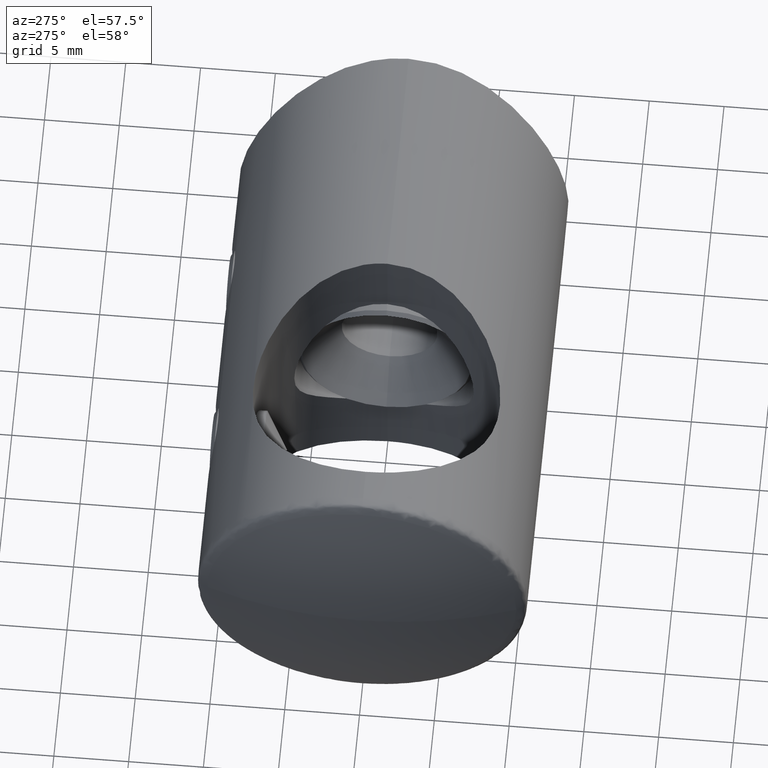
[diagram: clean part render]
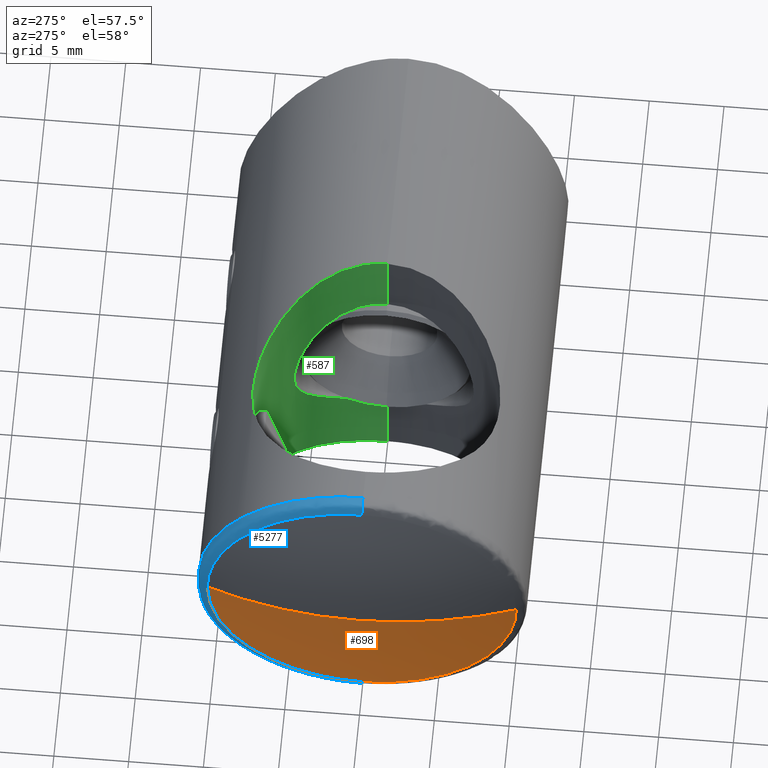
[diagram: same view with three faces highlighted in distinct colors, each labeled with its STEP entity id]
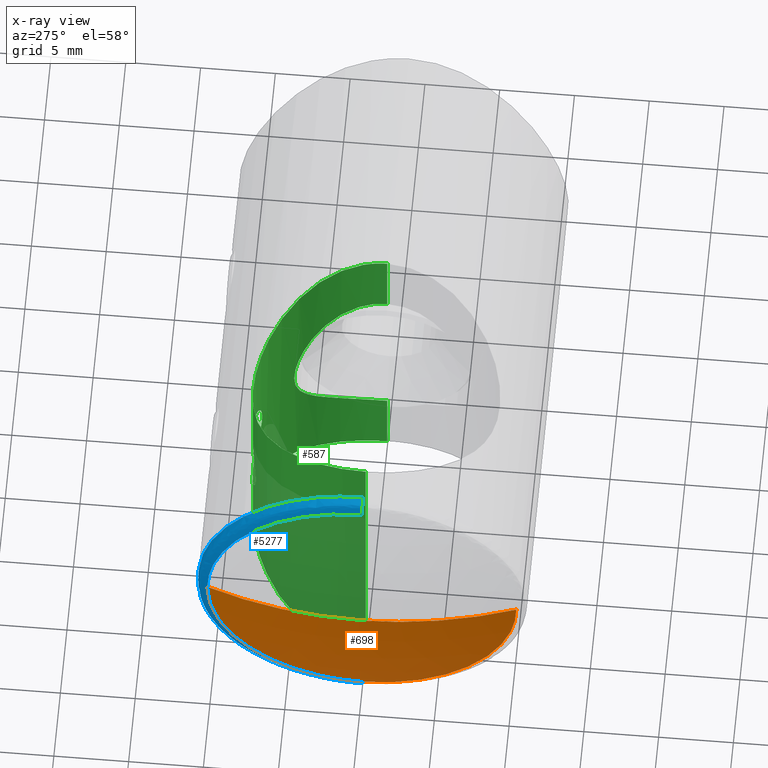
[diagram: x-ray of the same camera — body ghosted, the three highlighted faces saturated]
A machine part, auxiliary view with three faces highlighted in distinct colors.
The next image is the same camera in x-ray (body ghosted, the three faces saturated) — at least one of them is partly hidden behind the body in this view.
Their STEP definitions:

[orange] entity #698 — the highlighted spherical surface has radius 31.25 mm.
#24 = FACE_OUTER_BOUND ( 'NONE', #5221, .T. ) ;
#140 = CARTESIAN_POINT ( 'NONE',  ( 1.756922039244400000, -8.261021099154740800, -6.348623140236731500 ) ) ;
#254 = CARTESIAN_POINT ( 'NONE',  ( 31.24999999999998900, 0.0000000000000000000, 0.0000000000000000000 ) ) ;
#304 = CIRCLE ( 'NONE', #4768, 31.24999999999998900 ) ;
#552 = ORIENTED_EDGE ( 'NONE', *, *, #5036, .T. ) ;
#558 = EDGE_CURVE ( 'NONE', #4103, #1930, #1634, .T. ) ;
#598 = ORIENTED_EDGE ( 'NONE', *, *, #1356, .T. ) ;
#698 = ADVANCED_FACE ( 'NONE', ( #24 ), #2009, .T. ) ;
#707 = CARTESIAN_POINT ( 'NONE',  ( 1.756922039244400500, -10.33057851239669000, -5.583983872732769300E-015 ) ) ;
#814 = ORIENTED_EDGE ( 'NONE', *, *, #558, .T. ) ;
#824 = CARTESIAN_POINT ( 'NONE',  ( 1.756922039244400500, 2.704007069827279300, -10.06170120525118800 ) ) ;
#950 = DIRECTION ( 'NONE',  ( 0.0000000000000000000, 1.000000000000000000, 1.224646799147353200E-016 ) ) ;
#953 = CARTESIAN_POINT ( 'NONE',  ( 1.756922039244400500, -6.348623140236711900, -8.261021099154756800 ) ) ;
#1225 = CARTESIAN_POINT ( 'NONE',  ( 1.756922039244400500, 5.202675417054750900, -9.026718887957201800 ) ) ;
#1227 = B_SPLINE_CURVE_WITH_KNOTS ( 'NONE', 3,
 ( #3811, #3728, #5478, #1692, #5032, #4615, #1225, #824, #2537, #3787 ),
 .UNSPECIFIED., .F., .F.,
 ( 4, 2, 2, 2, 4 ),
 ( 0.2500000000000000000, 0.3125000000000000000, 0.3750000000000000000, 0.4375000000000000000, 0.5000000000000000000 ),
 .UNSPECIFIED. ) ;
#1356 = EDGE_CURVE ( 'NONE', #3671, #4103, #1227, .T. ) ;
#1380 = CARTESIAN_POINT ( 'NONE',  ( 1.756922039244400300, -9.026718887957201800, -5.202675417054749100 ) ) ;
#1503 = ORIENTED_EDGE ( 'NONE', *, *, #3414, .F. ) ;
#1629 = DIRECTION ( 'NONE',  ( 1.000000000000000000, 0.0000000000000000000, 0.0000000000000000000 ) ) ;
#1634 = B_SPLINE_CURVE_WITH_KNOTS ( 'NONE', 3,
 ( #4767, #5195, #5146, #2615, #953, #140, #1380, #2664, #3091, #4366 ),
 .UNSPECIFIED., .F., .F.,
 ( 4, 2, 2, 2, 4 ),
 ( 0.5000000000000000000, 0.5625000000000000000, 0.6250000000000000000, 0.6875000000000000000, 0.7500000000000000000 ),
 .UNSPECIFIED. ) ;
#1692 = CARTESIAN_POINT ( 'NONE',  ( 1.756922039244400300, 9.026718887957203600, -5.202675417054742000 ) ) ;
#1930 = VERTEX_POINT ( 'NONE', #707 ) ;
#1966 = CARTESIAN_POINT ( 'NONE',  ( 31.24999999999998900, 0.0000000000000000000, 0.0000000000000000000 ) ) ;
#2009 = SPHERICAL_SURFACE ( 'NONE', #4795, 31.24999999999998900 ) ;
#2537 = CARTESIAN_POINT ( 'NONE',  ( 1.756922039244400500, 1.352269565078253900, -10.33057851239669100 ) ) ;
#2615 = CARTESIAN_POINT ( 'NONE',  ( 1.756922039244400900, -5.202675417054744700, -9.026718887957205300 ) ) ;
#2664 = CARTESIAN_POINT ( 'NONE',  ( 1.756922039244400500, -10.06170120525118800, -2.704007069827281600 ) ) ;
#3004 = CARTESIAN_POINT ( 'NONE',  ( 1.756922039244400500, 10.33057851239669000, 9.398703391090517800E-016 ) ) ;
#3091 = CARTESIAN_POINT ( 'NONE',  ( 1.756922039244400000, -10.33057851239668600, -1.352269565078253500 ) ) ;
#3414 = EDGE_CURVE ( 'NONE', #3671, #3536, #304, .T. ) ;
#3536 = VERTEX_POINT ( 'NONE', #5123 ) ;
#3671 = VERTEX_POINT ( 'NONE', #3004 ) ;
#3728 = CARTESIAN_POINT ( 'NONE',  ( 1.756922039244400500, 10.33057851239669100, -1.352269565078248400 ) ) ;
#3768 = DIRECTION ( 'NONE',  ( -0.0000000000000000000, 0.0000000000000000000, 1.000000000000000000 ) ) ;
#3787 = CARTESIAN_POINT ( 'NONE',  ( 1.756922039244400500, 1.581413738568378900E-015, -10.33057851239669000 ) ) ;
#3811 = CARTESIAN_POINT ( 'NONE',  ( 1.756922039244400500, 10.33057851239669000, 9.398703391090517800E-016 ) ) ;
#4103 = VERTEX_POINT ( 'NONE', #5164 ) ;
#4141 = DIRECTION ( 'NONE',  ( 0.0000000000000000000, 1.000000000000000000, 0.0000000000000000000 ) ) ;
#4156 = CIRCLE ( 'NONE', #4663, 31.24999999999998900 ) ;
#4366 = CARTESIAN_POINT ( 'NONE',  ( 1.756922039244400500, -10.33057851239669000, -5.583983872732769300E-015 ) ) ;
#4383 = CARTESIAN_POINT ( 'NONE',  ( 31.24999999999998900, 0.0000000000000000000, 0.0000000000000000000 ) ) ;
#4615 = CARTESIAN_POINT ( 'NONE',  ( 1.756922039244400300, 6.348623140236723500, -8.261021099154746100 ) ) ;
#4663 = AXIS2_PLACEMENT_3D ( 'NONE', #4383, #4780, #950 ) ;
#4767 = CARTESIAN_POINT ( 'NONE',  ( 1.756922039244400500, 1.581413738568378900E-015, -10.33057851239669000 ) ) ;
#4768 = AXIS2_PLACEMENT_3D ( 'NONE', #1966, #3768, #1629 ) ;
#4780 = DIRECTION ( 'NONE',  ( 0.0000000000000000000, 1.224646799147353200E-016, -1.000000000000000000 ) ) ;
#4795 = AXIS2_PLACEMENT_3D ( 'NONE', #254, #5424, #4141 ) ;
#5032 = CARTESIAN_POINT ( 'NONE',  ( 1.756922039244400500, 8.261021099154753200, -6.348623140236719000 ) ) ;
#5036 = EDGE_CURVE ( 'NONE', #1930, #3536, #4156, .T. ) ;
#5123 = CARTESIAN_POINT ( 'NONE',  ( 0.0000000000000000000, 1.913510623667738700E-015, 0.0000000000000000000 ) ) ;
#5146 = CARTESIAN_POINT ( 'NONE',  ( 1.756922039244400500, -2.704007069827273600, -10.06170120525119000 ) ) ;
#5164 = CARTESIAN_POINT ( 'NONE',  ( 1.756922039244400500, 1.581413738568378900E-015, -10.33057851239669000 ) ) ;
#5195 = CARTESIAN_POINT ( 'NONE',  ( 1.756922039244400700, -1.352269565078246600, -10.33057851239669300 ) ) ;
#5221 = EDGE_LOOP ( 'NONE', ( #598, #814, #552, #1503 ) ) ;
#5424 = DIRECTION ( 'NONE',  ( -0.0000000000000000000, 0.0000000000000000000, -1.000000000000000000 ) ) ;
#5478 = CARTESIAN_POINT ( 'NONE',  ( 1.756922039244400700, 10.06170120525119000, -2.704007069827276200 ) ) ;

[blue] entity #5277 — the highlighted face is a freeform B-spline surface patch.
#8 = CARTESIAN_POINT ( 'NONE',  ( 1.756922039244196200, 2.704007071909384900, -10.06170120438812000 ) ) ;
#34 = CARTESIAN_POINT ( 'NONE',  ( 2.700700533988579500, 8.796335266379976800, 6.760013919724059400 ) ) ;
#53 = CARTESIAN_POINT ( 'NONE',  ( 2.700700533988579500, 6.735557395310440100E-016, -10.99999999999999600 ) ) ;
#149 = ORIENTED_EDGE ( 'NONE', *, *, #1356, .F. ) ;
#262 = CARTESIAN_POINT ( 'NONE',  ( 1.991401168373389000, 10.71369944243242300, -2.879226730169565300 ) ) ;
#280 = CARTESIAN_POINT ( 'NONE',  ( 1.991401168373390300, -11.00000000000000000, 1.439896630498682900 ) ) ;
#299 = CARTESIAN_POINT ( 'NONE',  ( 2.700700533988579500, -9.611650272816426400, -5.539808781859792800 ) ) ;
#320 = CARTESIAN_POINT ( 'NONE',  ( 1.991401168373390300, 11.00000000000000000, 1.439896630495493200 ) ) ;
#377 = CARTESIAN_POINT ( 'NONE',  ( 1.756922039244604300, 5.202675414972631500, -9.026718888820273200 ) ) ;
#396 = CARTESIAN_POINT ( 'NONE',  ( 1.756922039244400000, 8.261021097561359400, -6.348623141830112000 ) ) ;
#406 = EDGE_CURVE ( 'NONE', #1681, #2319, #893, .T. ) ;
#462 = CARTESIAN_POINT ( 'NONE',  ( 2.700700533988579500, 10.99999999999999800, 1.439896632895321800 ) ) ;
#481 = CARTESIAN_POINT ( 'NONE',  ( 2.700700533988579500, 6.760013919724061200, -8.796335266379975000 ) ) ;
#570 =( BOUNDED_CURVE ( )  B_SPLINE_CURVE ( 2, ( #4273, #2260, #4808 ),
 .UNSPECIFIED., .F., .F. ) 
 B_SPLINE_CURVE_WITH_KNOTS ( ( 3, 3 ),
 ( 0.0000000000000000000, 1.000000000000000000 ),
 .UNSPECIFIED. ) 
 CURVE ( )  GEOMETRIC_REPRESENTATION_ITEM ( )  RATIONAL_B_SPLINE_CURVE ( ( 1.000000000000000000, 4.078263282937810700, 1.000000000000000000 ) ) 
 REPRESENTATION_ITEM ( '' )  );
#580 = CARTESIAN_POINT ( 'NONE',  ( 2.700700533988579500, -6.760013921420907400, 8.796335264683131400 ) ) ;
#668 = CARTESIAN_POINT ( 'NONE',  ( 1.991401168373390300, 1.347111479062088200E-015, 11.00000000000000000 ) ) ;
#688 = CARTESIAN_POINT ( 'NONE',  ( 2.700700533988579500, 1.347111479062087800E-015, 10.99999999999999600 ) ) ;
#709 = CARTESIAN_POINT ( 'NONE',  ( 1.991401168373390300, -11.00000000000000000, -1.439896630498699100 ) ) ;
#726 = CARTESIAN_POINT ( 'NONE',  ( 2.700700533988579500, 2.879226730169502300, 10.71369944243298300 ) ) ;
#745 = CARTESIAN_POINT ( 'NONE',  ( 2.700700533988579500, -6.760013921418633700, -8.796335264685403400 ) ) ;
#764 = CARTESIAN_POINT ( 'NONE',  ( 1.756922039244520800, 9.026718888820257200, -5.202675414972051500 ) ) ;
#800 = CARTESIAN_POINT ( 'NONE',  ( 1.756922039244547300, -5.202675414972121700, 9.026718888820312300 ) ) ;
#824 = CARTESIAN_POINT ( 'NONE',  ( 1.756922039244400500, 2.704007069827279300, -10.06170120525118800 ) ) ;
#839 = CARTESIAN_POINT ( 'NONE',  ( 1.756922039244400000, 6.348623141830111100, -8.261021097561361200 ) ) ;
#850 = CARTESIAN_POINT ( 'NONE',  ( 2.700700533988579900, 10.71369944335146900, 2.879226727952081800 ) ) ;
#865 = CARTESIAN_POINT ( 'NONE',  ( 2.700700533988579000, 5.539808784079891500, -9.611650271896834900 ) ) ;
#893 = B_SPLINE_CURVE_WITH_KNOTS ( 'NONE', 3,
 ( #53, #3416, #2133, #865, #481, #3435, #3834, #1329, #3874, #462, #850, #1678, #34, #2564, #1699, #4265, #1273, #2114 ),
 .UNSPECIFIED., .F., .F.,
 ( 4, 2, 2, 2, 2, 2, 2, 2, 4 ),
 ( 0.5000000000000000000, 0.5625000000000000000, 0.6250000000000000000, 0.6874999999999998900, 0.7499999999999998900, 0.8124999999999998900, 0.8750000000000000000, 0.9375000000000000000, 1.000000000000000000 ),
 .UNSPECIFIED. ) ;
#1089 = CARTESIAN_POINT ( 'NONE',  ( 1.991401168373957000, -6.760013921420338100, 8.796335264682568300 ) ) ;
#1108 = CARTESIAN_POINT ( 'NONE',  ( 2.700700533988579500, 5.539808781863098600, -9.611650272815058600 ) ) ;
#1127 = CARTESIAN_POINT ( 'NONE',  ( 2.700700533988579500, -2.879226730172579800, -10.71369944243170600 ) ) ;
#1146 = CARTESIAN_POINT ( 'NONE',  ( 1.991401168373105000, -9.611650272813602000, 5.539808781865822600 ) ) ;
#1163 = CARTESIAN_POINT ( 'NONE',  ( 2.700700533988579500, -10.71369944243440700, 2.879226730166064100 ) ) ;
#1200 = CARTESIAN_POINT ( 'NONE',  ( 1.756922039244524600, -5.202675414969234200, -9.026718888821436700 ) ) ;
#1220 = CARTESIAN_POINT ( 'NONE',  ( 1.756922039244400300, 1.265130990854703100E-015, 10.33057851239669000 ) ) ;
#1225 = CARTESIAN_POINT ( 'NONE',  ( 1.756922039244400500, 5.202675417054750900, -9.026718887957201800 ) ) ;
#1227 = B_SPLINE_CURVE_WITH_KNOTS ( 'NONE', 3,
 ( #3811, #3728, #5478, #1692, #5032, #4615, #1225, #824, #2537, #3787 ),
 .UNSPECIFIED., .F., .F.,
 ( 4, 2, 2, 2, 4 ),
 ( 0.2500000000000000000, 0.3125000000000000000, 0.3750000000000000000, 0.4375000000000000000, 0.5000000000000000000 ),
 .UNSPECIFIED. ) ;
#1242 = CARTESIAN_POINT ( 'NONE',  ( 1.756922039244400300, 1.352269562824468800, 10.33057851239669000 ) ) ;
#1273 = CARTESIAN_POINT ( 'NONE',  ( 2.700700533988579900, 1.439896632895322200, 10.99999999999999600 ) ) ;
#1317 = ORIENTED_EDGE ( 'NONE', *, *, #5255, .F. ) ;
#1329 = CARTESIAN_POINT ( 'NONE',  ( 2.700700533988578600, 10.71369944335146600, -2.879226727952080500 ) ) ;
#1356 = EDGE_CURVE ( 'NONE', #3671, #4103, #1227, .T. ) ;
#1393 = CARTESIAN_POINT ( 'NONE',  ( 1.756922039244400500, 1.352269565078248800, 10.33057851239669300 ) ) ;
#1425 = CARTESIAN_POINT ( 'NONE',  ( 2.700700533988579500, -8.796335264683142100, 6.760013921420894100 ) ) ;
#1479 = CARTESIAN_POINT ( 'NONE',  ( 1.756922039244400500, 6.348623140236719000, 8.261021099154751500 ) ) ;
#1515 = CARTESIAN_POINT ( 'NONE',  ( 1.991401168373390300, 1.439896630495578700, -11.00000000000000000 ) ) ;
#1537 = CARTESIAN_POINT ( 'NONE',  ( 1.991401168373390300, -1.439896630495491700, 11.00000000000000000 ) ) ;
#1556 = CARTESIAN_POINT ( 'NONE',  ( 2.700700533988579500, 8.796335264682564800, 6.760013921421475800 ) ) ;
#1570 = FACE_OUTER_BOUND ( 'NONE', #3387, .T. ) ;
#1574 = CARTESIAN_POINT ( 'NONE',  ( 1.991401168372537900, -8.796335264684824300, -6.760013921418077700 ) ) ;
#1592 = CARTESIAN_POINT ( 'NONE',  ( 2.700700533988579500, 6.760013921420911000, -8.796335264683127900 ) ) ;
#1609 = CARTESIAN_POINT ( 'NONE',  ( 1.756922039244290400, -8.261021097563119800, -6.348623141827907500 ) ) ;
#1651 =( BOUNDED_SURFACE ( )  B_SPLINE_SURFACE ( 2, 3, ( 
 ( #5319, #3604, #4021, #4455, #580, #1425, #4398, #1163, #2454, #2435, #4916, #299, #4515, #745, #4057, #1127, #5338, #4114, #4969, #1108, #1592, #5359, #3236, #4096, #4554, #3275, #1962, #3257, #1556, #3638, #2846, #726, #3693, #688 ),
 ( #2828, #1537, #4077, #4937, #1089, #4954, #1146, #2399, #280, #709, #4534, #4493, #1574, #3674, #2003, #5393, #3709, #1515, #1983, #2864, #3656, #2417, #5376, #262, #4570, #320, #3292, #4131, #2023, #4988, #5413, #2884, #3214, #668 ),
 ( #1943, #2378, #2808, #800, #2920, #3744, #4629, #3763, #4150, #4609, #5451, #2085, #1609, #5009, #1200, #2066, #2105, #3348, #8, #377, #839, #396, #764, #3804, #5047, #3311, #4232, #4168, #2512, #2902, #1688, #4590, #1242, #1220 ) ),
 .UNSPECIFIED., .F., .T., .F. ) 
 B_SPLINE_SURFACE_WITH_KNOTS ( ( 3, 3 ),
 ( 4, 2, 2, 2, 2, 2, 2, 2, 2, 2, 2, 2, 2, 2, 2, 2, 4 ),
 ( 0.0000000000000000000, 1.000000000000000000 ),
 ( -3.141592653589793100, -2.748893571891069000, -2.356194490192344800, -1.963495408493620700, -1.570796326794896600, -1.178097245096172400, -0.7853981633974482800, -0.3926990816987241400, 0.0000000000000000000, 0.3926990816987241400, 0.7853981633974482800, 1.178097245096172400, 1.570796326794896600, 1.963495408493620700, 2.356194490192344800, 2.748893571891069000, 3.141592653589793100 ),
 .UNSPECIFIED. ) 
 GEOMETRIC_REPRESENTATION_ITEM ( )  RATIONAL_B_SPLINE_SURFACE ( (
 ( 1.000000000000000000, 1.000000000000000000, 1.000000000000000000, 1.000000000000000000, 1.000000000000000000, 1.000000000000000000, 1.000000000000000000, 1.000000000000000000, 1.000000000000000000, 1.000000000000000000, 1.000000000000000000, 1.000000000000000000, 1.000000000000000000, 1.000000000000000000, 1.000000000000000000, 1.000000000000000000, 1.000000000000000000, 1.000000000000000000, 1.000000000000000000, 1.000000000000000000, 1.000000000000000000, 1.000000000000000000, 1.000000000000000000, 1.000000000000000000, 1.000000000000000000, 1.000000000000000000, 1.000000000000000000, 1.000000000000000000, 1.000000000000000000, 1.000000000000000000, 1.000000000000000000, 1.000000000000000000, 1.000000000000000000, 1.000000000000000000),
 ( 4.078263282937810700, 4.078263282937810700, 4.078263282937807200, 4.078263282937807200, 4.078263282937810700, 4.078263282937810700, 4.078263282937807200, 4.078263282937807200, 4.078263282937810700, 4.078263282937810700, 4.078263282937810700, 4.078263282937810700, 4.078263282937810700, 4.078263282937810700, 4.078263282937809800, 4.078263282937809800, 4.078263282937810700, 4.078263282937810700, 4.078263282937808900, 4.078263282937808900, 4.078263282937810700, 4.078263282937810700, 4.078263282937809800, 4.078263282937809800, 4.078263282937810700, 4.078263282937810700, 4.078263282937810700, 4.078263282937810700, 4.078263282937809800, 4.078263282937809800, 4.078263282937808000, 4.078263282937808000, 4.078263282937810700, 4.078263282937810700),
 ( 1.000000000000000000, 1.000000000000000000, 1.000000000000000000, 1.000000000000000000, 1.000000000000000000, 1.000000000000000000, 1.000000000000000000, 1.000000000000000000, 1.000000000000000000, 1.000000000000000000, 1.000000000000000000, 1.000000000000000000, 1.000000000000000000, 1.000000000000000000, 1.000000000000000000, 1.000000000000000000, 1.000000000000000000, 1.000000000000000000, 1.000000000000000000, 1.000000000000000000, 1.000000000000000000, 1.000000000000000000, 1.000000000000000000, 1.000000000000000000, 1.000000000000000000, 1.000000000000000000, 1.000000000000000000, 1.000000000000000000, 1.000000000000000000, 1.000000000000000000, 1.000000000000000000, 1.000000000000000000, 1.000000000000000000, 1.000000000000000000) ) ) 
 REPRESENTATION_ITEM ( '' )  SURFACE ( )  );
#1678 = CARTESIAN_POINT ( 'NONE',  ( 2.700700533988579000, 9.611650271896833100, 5.539808784079891500 ) ) ;
#1681 = VERTEX_POINT ( 'NONE', #3848 ) ;
#1688 = CARTESIAN_POINT ( 'NONE',  ( 1.756922039244533100, 5.202675414972132400, 9.026718888820260700 ) ) ;
#1692 = CARTESIAN_POINT ( 'NONE',  ( 1.756922039244400300, 9.026718887957203600, -5.202675417054742000 ) ) ;
#1699 = CARTESIAN_POINT ( 'NONE',  ( 2.700700533988579900, 5.539808784079892400, 9.611650271896836600 ) ) ;
#1868 = CARTESIAN_POINT ( 'NONE',  ( 1.756922039244400500, 9.026718887957201800, 5.202675417054750000 ) ) ;
#1943 = CARTESIAN_POINT ( 'NONE',  ( 1.756922039244400300, 1.265130990854703100E-015, 10.33057851239669000 ) ) ;
#1962 = CARTESIAN_POINT ( 'NONE',  ( 2.700700533988579500, 10.71369944243304000, 2.879226730169361000 ) ) ;
#1983 = CARTESIAN_POINT ( 'NONE',  ( 1.991401168373389000, 2.879226730170137300, -10.71369944243355800 ) ) ;
#2002 = CARTESIAN_POINT ( 'NONE',  ( 2.700700533988579500, -6.735557395310441000E-016, 10.99999999999999600 ) ) ;
#2003 = CARTESIAN_POINT ( 'NONE',  ( 1.991401168373671600, -5.539808781859558300, -9.611650272817016100 ) ) ;
#2023 = CARTESIAN_POINT ( 'NONE',  ( 1.991401168373956500, 8.796335264681996300, 6.760013921420905600 ) ) ;
#2066 = CARTESIAN_POINT ( 'NONE',  ( 1.756922039244275700, -2.704007071912778200, -10.06170120438695800 ) ) ;
#2085 = CARTESIAN_POINT ( 'NONE',  ( 1.756922039244524600, -9.026718888821434900, -5.202675414969237800 ) ) ;
#2105 = CARTESIAN_POINT ( 'NONE',  ( 1.756922039244400300, -1.352269562824548000, -10.33057851239669000 ) ) ;
#2114 = CARTESIAN_POINT ( 'NONE',  ( 2.700700533988579500, -6.735557395310441000E-016, 10.99999999999999600 ) ) ;
#2128 = ORIENTED_EDGE ( 'NONE', *, *, #4215, .T. ) ;
#2133 = CARTESIAN_POINT ( 'NONE',  ( 2.700700533988579500, 2.879226727952081800, -10.71369944335146900 ) ) ;
#2260 = CARTESIAN_POINT ( 'NONE',  ( 1.991401168373389900, 0.0000000000000000000, -10.99999999999999800 ) ) ;
#2318 = CARTESIAN_POINT ( 'NONE',  ( 1.756922039244400500, 10.33057851239669100, 1.352269565078253200 ) ) ;
#2319 = VERTEX_POINT ( 'NONE', #2002 ) ;
#2357 = CARTESIAN_POINT ( 'NONE',  ( 1.756922039244400500, 10.06170120525118800, 2.704007069827278500 ) ) ;
#2378 = CARTESIAN_POINT ( 'NONE',  ( 1.756922039244400300, -1.352269562824466100, 10.33057851239669000 ) ) ;
#2399 = CARTESIAN_POINT ( 'NONE',  ( 1.991401168373672100, -10.71369944243468600, 2.879226730166179600 ) ) ;
#2417 = CARTESIAN_POINT ( 'NONE',  ( 1.991401168373389900, 8.796335264683129700, -6.760013921420911000 ) ) ;
#2435 = CARTESIAN_POINT ( 'NONE',  ( 2.700700533988579500, -10.99999999999999500, -1.439896630498698200 ) ) ;
#2438 = CARTESIAN_POINT ( 'NONE',  ( 1.756922039244400500, -3.162827477136756300E-016, 10.33057851239669000 ) ) ;
#2454 = CARTESIAN_POINT ( 'NONE',  ( 2.700700533988579500, -10.99999999999999800, 1.439896630498682400 ) ) ;
#2512 = CARTESIAN_POINT ( 'NONE',  ( 1.756922039244259000, 8.261021097560366400, 6.348623141830538300 ) ) ;
#2537 = CARTESIAN_POINT ( 'NONE',  ( 1.756922039244400500, 1.352269565078253900, -10.33057851239669100 ) ) ;
#2564 = CARTESIAN_POINT ( 'NONE',  ( 2.700700533988579500, 6.760013919724062100, 8.796335266379978500 ) ) ;
#2768 = CARTESIAN_POINT ( 'NONE',  ( 1.756922039244400300, 8.261021099154746100, 6.348623140236722600 ) ) ;
#2808 = CARTESIAN_POINT ( 'NONE',  ( 1.756922039244252800, -2.704007071909865900, 10.06170120438809300 ) ) ;
#2828 = CARTESIAN_POINT ( 'NONE',  ( 1.991401168373390300, 1.347111479062088200E-015, 11.00000000000000000 ) ) ;
#2846 = CARTESIAN_POINT ( 'NONE',  ( 2.700700533988579500, 5.539808781862499900, 9.611650272815303700 ) ) ;
#2864 = CARTESIAN_POINT ( 'NONE',  ( 1.991401168373389000, 5.539808781861833800, -9.611650272814744200 ) ) ;
#2884 = CARTESIAN_POINT ( 'NONE',  ( 1.991401168373389000, 2.879226730170266100, 10.71369944243346100 ) ) ;
#2902 = CARTESIAN_POINT ( 'NONE',  ( 1.756922039244541500, 6.348623141831094300, 8.261021097560945500 ) ) ;
#2920 = CARTESIAN_POINT ( 'NONE',  ( 1.756922039244259000, -6.348623141829968100, 8.261021097560933100 ) ) ;
#3004 = CARTESIAN_POINT ( 'NONE',  ( 1.756922039244400500, 10.33057851239669000, 9.398703391090517800E-016 ) ) ;
#3081 = ORIENTED_EDGE ( 'NONE', *, *, #406, .F. ) ;
#3214 = CARTESIAN_POINT ( 'NONE',  ( 1.991401168373390300, 1.439896630495494100, 11.00000000000000000 ) ) ;
#3236 = CARTESIAN_POINT ( 'NONE',  ( 2.700700533988579500, 9.611650272815428100, -5.539808781862208600 ) ) ;
#3257 = CARTESIAN_POINT ( 'NONE',  ( 2.700700533988579500, 9.611650272815257500, 5.539808781862618000 ) ) ;
#3271 = EDGE_CURVE ( 'NONE', #2319, #4580, #4605, .T. ) ;
#3275 = CARTESIAN_POINT ( 'NONE',  ( 2.700700533988579500, 10.99999999999999600, 1.439896630495493000 ) ) ;
#3292 = CARTESIAN_POINT ( 'NONE',  ( 1.991401168373389900, 10.71369944243469200, 2.879226730169576000 ) ) ;
#3311 = CARTESIAN_POINT ( 'NONE',  ( 1.756922039244400300, 10.33057851239669000, 1.352269562824467400 ) ) ;
#3348 = CARTESIAN_POINT ( 'NONE',  ( 1.756922039244400300, 1.352269562824548000, -10.33057851239669000 ) ) ;
#3387 = EDGE_LOOP ( 'NONE', ( #3081, #2128, #149, #1317, #4181 ) ) ;
#3416 = CARTESIAN_POINT ( 'NONE',  ( 2.700700533988579000, 1.439896632895322400, -10.99999999999999500 ) ) ;
#3435 = CARTESIAN_POINT ( 'NONE',  ( 2.700700533988579000, 8.796335266379978500, -6.760013919724060300 ) ) ;
#3470 = B_SPLINE_CURVE_WITH_KNOTS ( 'NONE', 3,
 ( #4328, #1393, #4437, #3569, #1479, #2768, #1868, #2357, #2318, #4847 ),
 .UNSPECIFIED., .F., .F.,
 ( 4, 2, 2, 2, 4 ),
 ( 0.0000000000000000000, 0.06250000000000000000, 0.1250000000000000000, 0.1875000000000000000, 0.2500000000000000000 ),
 .UNSPECIFIED. ) ;
#3569 = CARTESIAN_POINT ( 'NONE',  ( 1.756922039244400300, 5.202675417054743800, 9.026718887957201800 ) ) ;
#3604 = CARTESIAN_POINT ( 'NONE',  ( 2.700700533988579500, -1.439896630495491700, 10.99999999999999600 ) ) ;
#3638 = CARTESIAN_POINT ( 'NONE',  ( 2.700700533988579500, 6.760013921421462500, 8.796335264682577200 ) ) ;
#3656 = CARTESIAN_POINT ( 'NONE',  ( 1.991401168373389900, 6.760013921420911000, -8.796335264683129700 ) ) ;
#3671 = VERTEX_POINT ( 'NONE', #3004 ) ;
#3674 = CARTESIAN_POINT ( 'NONE',  ( 1.991401168374240500, -6.760013921419203900, -8.796335264685970000 ) ) ;
#3693 = CARTESIAN_POINT ( 'NONE',  ( 2.700700533988579500, 1.439896630495494300, 10.99999999999999600 ) ) ;
#3709 = CARTESIAN_POINT ( 'NONE',  ( 1.991401168373390300, -1.439896630495578700, -11.00000000000000000 ) ) ;
#3728 = CARTESIAN_POINT ( 'NONE',  ( 1.756922039244400500, 10.33057851239669100, -1.352269565078248400 ) ) ;
#3744 = CARTESIAN_POINT ( 'NONE',  ( 1.756922039244541500, -8.261021097561512100, 6.348623141830525900 ) ) ;
#3754 = CARTESIAN_POINT ( 'NONE',  ( 1.756922039244400500, -3.162827477136756300E-016, 10.33057851239669000 ) ) ;
#3763 = CARTESIAN_POINT ( 'NONE',  ( 1.756922039244199300, -10.06170120438929400, 2.704007071906579200 ) ) ;
#3787 = CARTESIAN_POINT ( 'NONE',  ( 1.756922039244400500, 1.581413738568378900E-015, -10.33057851239669000 ) ) ;
#3804 = CARTESIAN_POINT ( 'NONE',  ( 1.756922039244279700, 10.06170120438814100, -2.704007071909956900 ) ) ;
#3811 = CARTESIAN_POINT ( 'NONE',  ( 1.756922039244400500, 10.33057851239669000, 9.398703391090517800E-016 ) ) ;
#3834 = CARTESIAN_POINT ( 'NONE',  ( 2.700700533988579500, 9.611650271896834900, -5.539808784079888900 ) ) ;
#3848 = CARTESIAN_POINT ( 'NONE',  ( 2.700700533988579500, 6.735557395310440100E-016, -10.99999999999999600 ) ) ;
#3874 = CARTESIAN_POINT ( 'NONE',  ( 2.700700533988579900, 10.99999999999999600, -1.439896632895319800 ) ) ;
#4021 = CARTESIAN_POINT ( 'NONE',  ( 2.700700533988579500, -2.879226730170273200, 10.71369944243265800 ) ) ;
#4057 = CARTESIAN_POINT ( 'NONE',  ( 2.700700533988579500, -5.539808781859387700, -9.611650272816595100 ) ) ;
#4077 = CARTESIAN_POINT ( 'NONE',  ( 1.991401168373388500, -2.879226730169670100, 10.71369944243120100 ) ) ;
#4096 = CARTESIAN_POINT ( 'NONE',  ( 2.700700533988579500, 10.71369944243287600, -2.879226730169753200 ) ) ;
#4103 = VERTEX_POINT ( 'NONE', #5164 ) ;
#4114 = CARTESIAN_POINT ( 'NONE',  ( 2.700700533988579500, 1.439896630495578900, -10.99999999999999600 ) ) ;
#4131 = CARTESIAN_POINT ( 'NONE',  ( 1.991401168373389900, 9.611650272813610800, 5.539808781862406700 ) ) ;
#4150 = CARTESIAN_POINT ( 'NONE',  ( 1.756922039244400000, -10.33057851239669000, 1.352269562827463000 ) ) ;
#4168 = CARTESIAN_POINT ( 'NONE',  ( 1.756922039244588600, 9.026718888820232300, 5.202675414972618200 ) ) ;
#4181 = ORIENTED_EDGE ( 'NONE', *, *, #3271, .F. ) ;
#4215 = EDGE_CURVE ( 'NONE', #1681, #4103, #570, .T. ) ;
#4232 = CARTESIAN_POINT ( 'NONE',  ( 1.756922039244211300, 10.06170120438815900, 2.704007071909405800 ) ) ;
#4265 = CARTESIAN_POINT ( 'NONE',  ( 2.700700533988579000, 2.879226727952080500, 10.71369944335146900 ) ) ;
#4273 = CARTESIAN_POINT ( 'NONE',  ( 2.700700533988579500, 6.735557395310440100E-016, -10.99999999999999600 ) ) ;
#4328 = CARTESIAN_POINT ( 'NONE',  ( 1.756922039244400500, -3.162827477136756300E-016, 10.33057851239669000 ) ) ;
#4398 = CARTESIAN_POINT ( 'NONE',  ( 2.700700533988579500, -9.611650272813880800, 5.539808781865938100 ) ) ;
#4437 = CARTESIAN_POINT ( 'NONE',  ( 1.756922039244400700, 2.704007069827276200, 10.06170120525118800 ) ) ;
#4455 = CARTESIAN_POINT ( 'NONE',  ( 2.700700533988579500, -5.539808781861667700, 9.611650272815653700 ) ) ;
#4493 = CARTESIAN_POINT ( 'NONE',  ( 1.991401168373389900, -9.611650272815875700, -5.539808781858430300 ) ) ;
#4515 = CARTESIAN_POINT ( 'NONE',  ( 2.700700533988579500, -8.796335264685394500, -6.760013921418646100 ) ) ;
#4534 = CARTESIAN_POINT ( 'NONE',  ( 1.991401168373389900, -10.71369944243242000, -2.879226730173547900 ) ) ;
#4554 = CARTESIAN_POINT ( 'NONE',  ( 2.700700533988579500, 10.99999999999999600, -1.439896630495494300 ) ) ;
#4570 = CARTESIAN_POINT ( 'NONE',  ( 1.991401168373390300, 11.00000000000000000, -1.439896630495495200 ) ) ;
#4580 = VERTEX_POINT ( 'NONE', #3754 ) ;
#4590 = CARTESIAN_POINT ( 'NONE',  ( 1.756922039244267300, 2.704007071909910700, 10.06170120438812400 ) ) ;
#4605 =( BOUNDED_CURVE ( )  B_SPLINE_CURVE ( 2, ( #4974, #5342, #2438 ),
 .UNSPECIFIED., .F., .T. ) 
 B_SPLINE_CURVE_WITH_KNOTS ( ( 3, 3 ),
 ( 0.0000000000000000000, 1.000000000000000000 ),
 .UNSPECIFIED. ) 
 CURVE ( )  GEOMETRIC_REPRESENTATION_ITEM ( )  RATIONAL_B_SPLINE_CURVE ( ( 1.000000000000000000, 4.078263282937810700, 1.000000000000000000 ) ) 
 REPRESENTATION_ITEM ( '' )  );
#4609 = CARTESIAN_POINT ( 'NONE',  ( 1.756922039244400500, -10.33057851239669000, -1.352269562827477700 ) ) ;
#4615 = CARTESIAN_POINT ( 'NONE',  ( 1.756922039244400300, 6.348623140236723500, -8.261021099154746100 ) ) ;
#4629 = CARTESIAN_POINT ( 'NONE',  ( 1.756922039244601000, -9.026718888819088300, 5.202675414975465700 ) ) ;
#4808 = CARTESIAN_POINT ( 'NONE',  ( 1.756922039244400500, 1.581413738568378900E-015, -10.33057851239669000 ) ) ;
#4847 = CARTESIAN_POINT ( 'NONE',  ( 1.756922039244400500, 10.33057851239669000, 9.398703391090517800E-016 ) ) ;
#4916 = CARTESIAN_POINT ( 'NONE',  ( 2.700700533988579500, -10.71369944243187100, -2.879226730172183200 ) ) ;
#4937 = CARTESIAN_POINT ( 'NONE',  ( 1.991401168373388500, -5.539808781862271700, 9.611650272817108500 ) ) ;
#4954 = CARTESIAN_POINT ( 'NONE',  ( 1.991401168372821400, -8.796335264683714100, 6.760013921421464300 ) ) ;
#4969 = CARTESIAN_POINT ( 'NONE',  ( 2.700700533988579500, 2.879226730168871700, -10.71369944243324200 ) ) ;
#4974 = CARTESIAN_POINT ( 'NONE',  ( 2.700700533988579500, -6.735557395310441000E-016, 10.99999999999999600 ) ) ;
#4988 = CARTESIAN_POINT ( 'NONE',  ( 1.991401168372821000, 6.760013921422030100, 8.796335264683143900 ) ) ;
#5009 = CARTESIAN_POINT ( 'NONE',  ( 1.756922039244510200, -6.348623141828340100, -8.261021097563572700 ) ) ;
#5032 = CARTESIAN_POINT ( 'NONE',  ( 1.756922039244400500, 8.261021099154753200, -6.348623140236719000 ) ) ;
#5047 = CARTESIAN_POINT ( 'NONE',  ( 1.756922039244400300, 10.33057851239669000, -1.352269562824468800 ) ) ;
#5164 = CARTESIAN_POINT ( 'NONE',  ( 1.756922039244400500, 1.581413738568378900E-015, -10.33057851239669000 ) ) ;
#5255 = EDGE_CURVE ( 'NONE', #4580, #3671, #3470, .T. ) ;
#5277 = ADVANCED_FACE ( 'NONE', ( #1570 ), #1651, .T. ) ;
#5319 = CARTESIAN_POINT ( 'NONE',  ( 2.700700533988579500, 1.347111479062087800E-015, 10.99999999999999600 ) ) ;
#5338 = CARTESIAN_POINT ( 'NONE',  ( 2.700700533988579500, -1.439896630495578900, -10.99999999999999600 ) ) ;
#5342 = CARTESIAN_POINT ( 'NONE',  ( 1.991401168373389900, 1.347111479062088200E-015, 10.99999999999999800 ) ) ;
#5359 = CARTESIAN_POINT ( 'NONE',  ( 2.700700533988579500, 8.796335264683126100, -6.760013921420911800 ) ) ;
#5376 = CARTESIAN_POINT ( 'NONE',  ( 1.991401168373389000, 9.611650272815879200, -5.539808781862394200 ) ) ;
#5393 = CARTESIAN_POINT ( 'NONE',  ( 1.991401168373105400, -2.879226730172406200, -10.71369944243128300 ) ) ;
#5413 = CARTESIAN_POINT ( 'NONE',  ( 1.991401168373389000, 5.539808781861732500, 9.611650272814825900 ) ) ;
#5451 = CARTESIAN_POINT ( 'NONE',  ( 1.756922039244275300, -10.06170120438695600, -2.704007071912782700 ) ) ;
#5478 = CARTESIAN_POINT ( 'NONE',  ( 1.756922039244400700, 10.06170120525119000, -2.704007069827276200 ) ) ;

[green] entity #587 — the highlighted cylindrical surface (partial cylindrical patch) has radius 8.25 mm, axis along (0, 0, 1).
#2 = CARTESIAN_POINT ( 'NONE',  ( 21.24999999999999600, 0.0000000000000000000, -11.22136191556446100 ) ) ;
#5 = CARTESIAN_POINT ( 'NONE',  ( 20.09801432738143800, 4.237375077234846200, 10.16230058607206200 ) ) ;
#16 = CARTESIAN_POINT ( 'NONE',  ( 13.16379628325144000, 8.249999999999994700, 2.500000000000000000 ) ) ;
#19 = CARTESIAN_POINT ( 'NONE',  ( 19.15965938991114100, 5.494489762643056000, 9.532202534133059400 ) ) ;
#41 = LINE ( 'NONE', #2993, #899 ) ;
#67 = B_SPLINE_CURVE_WITH_KNOTS ( 'NONE', 3,
 ( #5160, #2220, #105, #3499, #3934, #4794, #1376, #4348, #1802, #4829, #226, #4898, #1904, #2338, #3195, #2285, #3551, #1458, #5243, #1496, #2786, #3984, #615, #1888, #1851, #3177, #186, #203, #1052, #3621, #3967, #3157, #4882, #1019, #1441, #3586, #3140, #4474, #5299, #4415, #4001, #596, #1034, #5261, #2751, #2717, #171, #2734 ),
 .UNSPECIFIED., .F., .F.,
 ( 4, 2, 2, 2, 2, 2, 2, 2, 2, 2, 2, 2, 2, 2, 2, 2, 2, 2, 2, 2, 2, 2, 2, 4 ),
 ( 0.0000000000000000000, 0.001688807774991216900, 0.002533211662486824600, 0.003377615549982432500, 0.004222019437478040400, 0.005066423324973647400, 0.006755231099964865800, 0.008444038874956085900, 0.01013284664994730500, 0.01097725053744291600, 0.01182165442493852100, 0.01266605831243412800, 0.01351046219992973200, 0.01435486608742533700, 0.01519926997492094200, 0.01604367386241654900, 0.01688807774991215500, 0.01857688552490337200, 0.02026569329989458600, 0.02195450107488580700, 0.02364330884987702100, 0.02448771273737263000, 0.02533211662486823900, 0.02702092439985945300 ),
 .UNSPECIFIED. ) ;
#80 = CARTESIAN_POINT ( 'NONE',  ( 10.81672961319694400, 7.956936172879803600, -1.260823645421919300 ) ) ;
#105 = CARTESIAN_POINT ( 'NONE',  ( 21.19113442307973500, 1.131049297860093400, -10.95565678166066400 ) ) ;
#171 = CARTESIAN_POINT ( 'NONE',  ( 4.750000000000000000, 0.5651491589262759300, -10.99999999999999300 ) ) ;
#186 = CARTESIAN_POINT ( 'NONE',  ( 12.43737859983032500, 8.235619457351550200, -7.292218034050415000 ) ) ;
#203 = CARTESIAN_POINT ( 'NONE',  ( 11.87651917954401200, 8.178004740296003700, -7.356773081326737800 ) ) ;
#214 = EDGE_LOOP ( 'NONE', ( #3731, #4843 ) ) ;
#226 = CARTESIAN_POINT ( 'NONE',  ( 19.95274129580610300, 4.448845172680597300, -10.06310584382255900 ) ) ;
#247 = CARTESIAN_POINT ( 'NONE',  ( 21.01237353600392100, 2.001933385665277200, -5.669924944294924000 ) ) ;
#318 = CARTESIAN_POINT ( 'NONE',  ( 6.498912508311226700, 5.106895690660534700, 9.754662164156487200 ) ) ;
#330 = EDGE_CURVE ( 'NONE', #4661, #4932, #492, .T. ) ;
#337 = CARTESIAN_POINT ( 'NONE',  ( 5.217761191215189800, 2.752455229331789000, 10.65352155240841200 ) ) ;
#345 = CARTESIAN_POINT ( 'NONE',  ( 21.01296960308056000, 2.000440133160039700, 5.670797878326510500 ) ) ;
#357 = CARTESIAN_POINT ( 'NONE',  ( 4.764654649098655900, 0.5675665885170531100, 10.98899617168758300 ) ) ;
#368 = CARTESIAN_POINT ( 'NONE',  ( 13.65040323271482100, 8.225892726849481900, -2.419452073090536000 ) ) ;
#374 = CARTESIAN_POINT ( 'NONE',  ( 20.35645678826867700, 3.773922385158936100, 10.34565031946604000 ) ) ;
#381 = CARTESIAN_POINT ( 'NONE',  ( 20.22472074451696100, 3.995409179601378200, 4.492308796618519100 ) ) ;
#393 = CARTESIAN_POINT ( 'NONE',  ( 11.59288721232376700, 8.133821065693679100, 7.405931662473972400 ) ) ;
#400 = CARTESIAN_POINT ( 'NONE',  ( 18.67376601177694100, 5.989306771456030600, 0.4120547764143673900 ) ) ;
#407 = CARTESIAN_POINT ( 'NONE',  ( 15.37074108004366700, 7.902298536740444100, -0.8099703353017133600 ) ) ;
#419 = CARTESIAN_POINT ( 'NONE',  ( 18.88204150577676200, 5.785398128159647200, -1.602612430588023400 ) ) ;
#434 = CARTESIAN_POINT ( 'NONE',  ( 17.16901957582431100, 7.123946873466822500, 8.383144746108049700 ) ) ;
#445 = CARTESIAN_POINT ( 'NONE',  ( 14.88255768673637300, 8.033207908570171100, 1.653052909673862200 ) ) ;
#450 = DIRECTION ( 'NONE',  ( -0.0000000000000000000, -0.0000000000000000000, 1.000000000000000000 ) ) ;
#452 = CARTESIAN_POINT ( 'NONE',  ( 7.578024713375790500, 6.223475635251460900, 9.072420972650247600 ) ) ;
#492 = B_SPLINE_CURVE_WITH_KNOTS ( 'NONE', 3,
 ( #5423, #3735, #1192, #368, #794, #3755, #1638, #4620, #900, #4718, #1312, #407, #3816, #3026, #2971, #2149, #5096, #1254, #4222, #3397, #5113, #4284, #445, #1294, #3379, #829, #2583, #2169, #2989, #4681, #16, #5129 ),
 .UNSPECIFIED., .F., .F.,
 ( 4, 2, 2, 2, 2, 2, 2, 2, 2, 2, 2, 2, 2, 2, 2, 4 ),
 ( 0.0000000000000000000, 0.0004914146416510658500, 0.0009828292833021317000, 0.001474243924953197400, 0.001965658566604263400, 0.002948487849906395300, 0.003439902491557461700, 0.003931317133208527700, 0.004422731774859594100, 0.004914146416510658700, 0.005405561058161725100, 0.005896975699812790700, 0.006388390341463857900, 0.006879804983114924300, 0.007371219624765990700, 0.007862634266417057100 ),
 .UNSPECIFIED. ) ;
#525 = DIRECTION ( 'NONE',  ( -0.0000000000000000000, -0.0000000000000000000, 1.000000000000000000 ) ) ;
#563 = CARTESIAN_POINT ( 'NONE',  ( 21.24999999999999600, 0.0000000000000000000, -6.000000000000000900 ) ) ;
#587 = ADVANCED_FACE ( 'NONE', ( #4127, #5130 ), #3991, .F. ) ;
#596 = CARTESIAN_POINT ( 'NONE',  ( 5.312948884630659000, 3.007582428000063600, -10.58407945085511800 ) ) ;
#606 = VERTEX_POINT ( 'NONE', #4465 ) ;
#615 = CARTESIAN_POINT ( 'NONE',  ( 14.12998183183033500, 8.177197042837789800, -7.357674357849811400 ) ) ;
#718 = DIRECTION ( 'NONE',  ( 1.000000000000000000, 0.0000000000000000000, 0.0000000000000000000 ) ) ;
#728 = VERTEX_POINT ( 'NONE', #3324 ) ;
#768 = VECTOR ( 'NONE', #853, 1000.000000000000000 ) ;
#771 = CARTESIAN_POINT ( 'NONE',  ( 18.66252028616802100, 5.999863669070879100, 0.2084141880186997400 ) ) ;
#789 = CARTESIAN_POINT ( 'NONE',  ( 21.24999999999999600, -2.341717819930469100E-020, 6.000000000000000900 ) ) ;
#794 = CARTESIAN_POINT ( 'NONE',  ( 13.80974514127072600, 8.211576169804635200, -2.370892446612012700 ) ) ;
#797 = CARTESIAN_POINT ( 'NONE',  ( 21.13206634655757900, 1.417758583695413200, 10.91176124889529400 ) ) ;
#804 = CARTESIAN_POINT ( 'NONE',  ( 18.99203309809460500, 5.674482811081616300, 1.987700854937964000 ) ) ;
#829 = CARTESIAN_POINT ( 'NONE',  ( 14.25643910496399700, 8.154915167527853700, 2.167440310690990300 ) ) ;
#843 = CARTESIAN_POINT ( 'NONE',  ( 21.18880103676043400, 1.022923459833669600, 5.915638937569061000 ) ) ;
#853 = DIRECTION ( 'NONE',  ( -0.0000000000000000000, -0.0000000000000000000, 1.000000000000000000 ) ) ;
#858 = CARTESIAN_POINT ( 'NONE',  ( 11.11704279493340200, 8.033113881333198600, 1.652597886520209100 ) ) ;
#869 = CARTESIAN_POINT ( 'NONE',  ( 12.71717449616966900, 8.250037359455928900, 7.275773743787246100 ) ) ;
#899 = VECTOR ( 'NONE', #450, 1000.000000000000000 ) ;
#900 = CARTESIAN_POINT ( 'NONE',  ( 14.65390804811145700, 8.083368049782055900, -1.881713686848663000 ) ) ;
#908 = CARTESIAN_POINT ( 'NONE',  ( 11.74339400769105900, 8.154891624825905800, 2.167356142784215800 ) ) ;
#925 = CARTESIAN_POINT ( 'NONE',  ( 11.34774824040098000, 8.083718858884335400, 1.883260930817931800 ) ) ;
#1019 = CARTESIAN_POINT ( 'NONE',  ( 9.279673494511529300, 7.382771408228344400, -8.159516837715951700 ) ) ;
#1034 = CARTESIAN_POINT ( 'NONE',  ( 5.217379633786522100, 2.751300873359099800, -10.65380115006108100 ) ) ;
#1052 = CARTESIAN_POINT ( 'NONE',  ( 11.59581506494135900, 8.134357081729925600, -7.405344803100480700 ) ) ;
#1064 = VERTEX_POINT ( 'NONE', #4975 ) ;
#1138 = CARTESIAN_POINT ( 'NONE',  ( 13.00000000000000000, 0.0000000000000000000, -11.22136191556446100 ) ) ;
#1172 = EDGE_CURVE ( 'NONE', #5062, #728, #2633, .T. ) ;
#1188 = CARTESIAN_POINT ( 'NONE',  ( 21.24242067676944500, 0.4090068549443061100, 5.989591761393277200 ) ) ;
#1192 = CARTESIAN_POINT ( 'NONE',  ( 13.32950201443266300, 8.244984168647384600, -2.483586342689299500 ) ) ;
#1204 = CARTESIAN_POINT ( 'NONE',  ( 19.73855380583679800, 4.766937580558109600, 3.663005559388208700 ) ) ;
#1239 = CARTESIAN_POINT ( 'NONE',  ( 14.12511653295545800, 8.177740724574498200, 7.357066355327753500 ) ) ;
#1248 = CARTESIAN_POINT ( 'NONE',  ( 20.66387653769397300, 3.073552000471305500, 5.167088412725340700 ) ) ;
#1254 = CARTESIAN_POINT ( 'NONE',  ( 15.41924212928345600, 7.887388804863633100, 0.6512587463554881900 ) ) ;
#1256 = ORIENTED_EDGE ( 'NONE', *, *, #5242, .F. ) ;
#1260 = CARTESIAN_POINT ( 'NONE',  ( 14.40352380275791900, 8.134523920420505800, 7.405167174651591500 ) ) ;
#1279 = CARTESIAN_POINT ( 'NONE',  ( 7.386247918531293700, 6.051026268984466900, 9.188638761848244100 ) ) ;
#1282 = CARTESIAN_POINT ( 'NONE',  ( 12.67033556769543000, 8.244983931783961500, -2.483586697382677200 ) ) ;
#1294 = CARTESIAN_POINT ( 'NONE',  ( 14.65179762703942000, 8.083812055306056600, 1.883659195655719200 ) ) ;
#1298 = CARTESIAN_POINT ( 'NONE',  ( 21.24999999999999300, 0.2855304291958878400, 10.99999999999999600 ) ) ;
#1301 = CARTESIAN_POINT ( 'NONE',  ( 10.62836740746757200, 7.902038502800220200, 0.8078156973448377100 ) ) ;
#1312 = CARTESIAN_POINT ( 'NONE',  ( 15.18329810051679400, 7.956924728422858800, -1.260583299501203400 ) ) ;
#1335 = CARTESIAN_POINT ( 'NONE',  ( 10.58086715782246400, 7.887422099683050200, 0.6515337096993009100 ) ) ;
#1345 = ORIENTED_EDGE ( 'NONE', *, *, #1172, .T. ) ;
#1376 = CARTESIAN_POINT ( 'NONE',  ( 20.68612805876062000, 3.009932476997124100, -10.58340884872859900 ) ) ;
#1441 = CARTESIAN_POINT ( 'NONE',  ( 8.824543859023325600, 7.134028134591051000, -8.380989653624141100 ) ) ;
#1458 = CARTESIAN_POINT ( 'NONE',  ( 15.98491014381641600, 7.695671322364990600, -7.861124798465053400 ) ) ;
#1496 = CARTESIAN_POINT ( 'NONE',  ( 15.21230841576759800, 7.952477165056841100, -7.600767052253857500 ) ) ;
#1615 = CARTESIAN_POINT ( 'NONE',  ( 19.06032196563555900, 5.598692867936931900, -2.166125969362221700 ) ) ;
#1638 = CARTESIAN_POINT ( 'NONE',  ( 14.25535288940819500, 8.155090012609793600, -2.168107292859268400 ) ) ;
#1650 = CARTESIAN_POINT ( 'NONE',  ( 19.27074284202394600, 5.362306258287203400, 2.698535141796647000 ) ) ;
#1663 = CARTESIAN_POINT ( 'NONE',  ( 18.42871707199914900, 6.233775715954928700, 9.073332159836853700 ) ) ;
#1671 = CARTESIAN_POINT ( 'NONE',  ( 19.50034038741803900, 5.081869751427677600, 3.195297440894345500 ) ) ;
#1706 = CARTESIAN_POINT ( 'NONE',  ( 19.65308118496175600, 4.885455401549438500, 9.858460869029414700 ) ) ;
#1709 = CARTESIAN_POINT ( 'NONE',  ( 11.74455231244886200, 8.155074716841724600, -2.168048881031180200 ) ) ;
#1725 = EDGE_CURVE ( 'NONE', #606, #5062, #4821, .T. ) ;
#1733 = CARTESIAN_POINT ( 'NONE',  ( 21.24999999999999600, 0.0000000000000000000, -11.22136191556446100 ) ) ;
#1747 = CARTESIAN_POINT ( 'NONE',  ( 12.99999999999999800, 8.249999999999998200, 2.500000000000000000 ) ) ;
#1802 = CARTESIAN_POINT ( 'NONE',  ( 20.35295218648249000, 3.750795160103203200, -10.34383675210722200 ) ) ;
#1851 = CARTESIAN_POINT ( 'NONE',  ( 13.28178457091290800, 8.249996381947992700, -7.275820207912975200 ) ) ;
#1888 = CARTESIAN_POINT ( 'NONE',  ( 13.56409311331203000, 8.235606193667573300, -7.292236560643111400 ) ) ;
#1904 = CARTESIAN_POINT ( 'NONE',  ( 19.16824097160871400, 5.503036232543763600, -9.534242971601928600 ) ) ;
#1913 = VERTEX_POINT ( 'NONE', #3982 ) ;
#1979 = ORIENTED_EDGE ( 'NONE', *, *, #4014, .T. ) ;
#2051 = CARTESIAN_POINT ( 'NONE',  ( 19.73553020436491700, 4.771209285056577300, -3.657494022451092800 ) ) ;
#2082 = CARTESIAN_POINT ( 'NONE',  ( 17.39067020715513900, 6.989342832023541300, 8.496048648923720100 ) ) ;
#2119 = CARTESIAN_POINT ( 'NONE',  ( 13.28500086623128100, 8.249962497144020200, 7.275858629668362300 ) ) ;
#2126 = CARTESIAN_POINT ( 'NONE',  ( 18.67330257933015900, 5.989746554817462400, -0.4066890788106467000 ) ) ;
#2138 = CARTESIAN_POINT ( 'NONE',  ( 20.77890339625368600, 2.761890610910097400, 10.65108387912083500 ) ) ;
#2149 = CARTESIAN_POINT ( 'NONE',  ( 15.50007557021371000, 7.862068566831080600, 0.1630022334714919000 ) ) ;
#2158 = CARTESIAN_POINT ( 'NONE',  ( 11.00248178231502100, 8.007960131485813100, -1.537841059505515900 ) ) ;
#2169 = CARTESIAN_POINT ( 'NONE',  ( 13.80865605724310500, 8.211674013408135400, 2.371223167195097000 ) ) ;
#2195 = CARTESIAN_POINT ( 'NONE',  ( 10.51611186481108200, 7.867269570130774000, -0.3275422617905212100 ) ) ;
#2220 = CARTESIAN_POINT ( 'NONE',  ( 21.24999999999999600, 0.5722584992558088500, -10.99999999999999500 ) ) ;
#2285 = CARTESIAN_POINT ( 'NONE',  ( 17.17250159335446800, 7.135700921912439700, -8.379532761284428600 ) ) ;
#2338 = CARTESIAN_POINT ( 'NONE',  ( 18.43178222865015700, 6.231079062332797000, -9.075177713807480700 ) ) ;
#2395 = CARTESIAN_POINT ( 'NONE',  ( 4.823125974643695600, 1.132155490410507800, 10.94524520690599600 ) ) ;
#2431 = CARTESIAN_POINT ( 'NONE',  ( 5.638459489113490300, 3.763974313362551200, 10.34927374072824500 ) ) ;
#2451 = CARTESIAN_POINT ( 'NONE',  ( 4.750000000000000000, -5.051470806582749100E-024, 10.99999999999999600 ) ) ;
#2460 = CARTESIAN_POINT ( 'NONE',  ( 21.24999999999999300, 0.4146886893769310400, -6.000000000000000900 ) ) ;
#2477 = CARTESIAN_POINT ( 'NONE',  ( 21.24999999999999600, 0.2043197979624112000, 6.000000000000001800 ) ) ;
#2485 = EDGE_LOOP ( 'NONE', ( #4400, #1256, #3605, #1345, #1979, #4646 ) ) ;
#2498 = CARTESIAN_POINT ( 'NONE',  ( 19.90207650513868700, 4.529912046693451300, -3.952523958628196200 ) ) ;
#2509 = CARTESIAN_POINT ( 'NONE',  ( 18.03210429597601600, 6.557897431391736200, 8.839061304974386200 ) ) ;
#2517 = CARTESIAN_POINT ( 'NONE',  ( 18.99604031019300300, 5.667163697612267000, -1.980518550393825200 ) ) ;
#2528 = CARTESIAN_POINT ( 'NONE',  ( 10.26380118736124700, 7.787803877259031900, 7.769414438568458300 ) ) ;
#2549 = CARTESIAN_POINT ( 'NONE',  ( 15.22314669946382700, 7.964392799195008100, 7.589227136267220800 ) ) ;
#2583 = CARTESIAN_POINT ( 'NONE',  ( 14.11000982664138600, 8.176392413904682900, 2.245996908350114100 ) ) ;
#2590 = CARTESIAN_POINT ( 'NONE',  ( 11.88969737755167200, 8.176353153944482700, 2.245854788096186500 ) ) ;
#2633 = B_SPLINE_CURVE_WITH_KNOTS ( 'NONE', 3,
 ( #4994, #2460, #4119, #2792, #247, #3218, #4155, #4173, #5090, #2498, #2051, #4674, #4216, #1615, #2517, #419, #3333, #4237, #5455, #2126, #5014, #771, #400, #2925, #5072, #5418, #804, #2889, #1650, #4633, #1671, #1204, #4653, #381, #3393, #1248, #4595, #345, #3318, #843, #3770, #1188, #2477, #789 ),
 .UNSPECIFIED., .F., .F.,
 ( 4, 2, 2, 2, 2, 2, 2, 2, 2, 2, 2, 2, 2, 2, 2, 2, 2, 2, 2, 2, 2, 4 ),
 ( 0.0000000000000000000, 0.001223918429784517900, 0.002447836859569035900, 0.003671755289353553300, 0.004895673719138071700, 0.006119592148922589600, 0.007343510578707106700, 0.007955469793599363000, 0.008567429008491620300, 0.009179388223383877500, 0.009791347438276134700, 0.01040330665316839000, 0.01101526586806064700, 0.01223918429784516200, 0.01285114351273741700, 0.01346310272762967600, 0.01468702115741418900, 0.01591093958719870500, 0.01713485801698322000, 0.01835877644676773800, 0.01897073566165999700, 0.01958269487655225600 ),
 .UNSPECIFIED. ) ;
#2640 = CARTESIAN_POINT ( 'NONE',  ( 12.83381021550908100, 8.249999999999994700, -2.499999999999999100 ) ) ;
#2717 = CARTESIAN_POINT ( 'NONE',  ( 4.807461350080466800, 1.123805066341426700, -10.95670153129766800 ) ) ;
#2734 = CARTESIAN_POINT ( 'NONE',  ( 4.750000000000000000, 1.347111484113642600E-015, -10.99999999999999600 ) ) ;
#2751 = CARTESIAN_POINT ( 'NONE',  ( 4.979343219558452400, 1.952203024725416500, -10.82898725267149100 ) ) ;
#2786 = CARTESIAN_POINT ( 'NONE',  ( 14.94796241166344300, 8.021485512241113700, -7.527457460067918900 ) ) ;
#2792 = CARTESIAN_POINT ( 'NONE',  ( 21.10082681083909900, 1.612335725953032200, -5.793456161175718900 ) ) ;
#2814 = VERTEX_POINT ( 'NONE', #4531 ) ;
#2826 = CARTESIAN_POINT ( 'NONE',  ( 4.866543897676775600, 1.409666488693898800, 10.91279794036840700 ) ) ;
#2881 = CARTESIAN_POINT ( 'NONE',  ( 6.835291055198072600, 5.506849279435233900, 9.531978589375027500 ) ) ;
#2889 = CARTESIAN_POINT ( 'NONE',  ( 19.19712257863589100, 5.446889084683263600, 2.523702986615854000 ) ) ;
#2917 = CARTESIAN_POINT ( 'NONE',  ( 20.94678583427696900, 2.233376971990030000, 10.77430530696460700 ) ) ;
#2925 = CARTESIAN_POINT ( 'NONE',  ( 18.71756533173997300, 5.947508977403006500, 0.8177540614913511000 ) ) ;
#2935 = CARTESIAN_POINT ( 'NONE',  ( 19.49511917354101700, 5.093549692798703200, 9.752335844838009700 ) ) ;
#2948 = EDGE_CURVE ( 'NONE', #1064, #1913, #4427, .T. ) ;
#2971 = CARTESIAN_POINT ( 'NONE',  ( 15.49992389622735600, 7.862116796347166300, -0.1653121228692295300 ) ) ;
#2977 = CARTESIAN_POINT ( 'NONE',  ( 7.978720372660099300, 6.551046931246448300, 8.838792643351189000 ) ) ;
#2980 = CARTESIAN_POINT ( 'NONE',  ( 12.99999999999999800, 8.249999999999998200, -2.500000000000000000 ) ) ;
#2989 = CARTESIAN_POINT ( 'NONE',  ( 13.65267681995554300, 8.225733220993223700, 2.418913276066438000 ) ) ;
#2993 = CARTESIAN_POINT ( 'NONE',  ( 4.750000000000000900, 1.010333609296566400E-015, -11.22136191556446100 ) ) ;
#3000 = CARTESIAN_POINT ( 'NONE',  ( 10.51664150735273400, 7.867436792479953300, 0.3311049380078842100 ) ) ;
#3026 = CARTESIAN_POINT ( 'NONE',  ( 15.48383680830858600, 7.867286568254878700, -0.3281918739311708300 ) ) ;
#3033 = CARTESIAN_POINT ( 'NONE',  ( 12.34180574829894700, 8.229299579718913900, 2.433787767564885100 ) ) ;
#3049 = CARTESIAN_POINT ( 'NONE',  ( 11.47358729374606400, 8.108727198743041600, -1.986617501409013300 ) ) ;
#3140 = CARTESIAN_POINT ( 'NONE',  ( 7.563919442182542400, 6.227278754806535600, -9.077769622608109000 ) ) ;
#3157 = CARTESIAN_POINT ( 'NONE',  ( 10.26925491418242100, 7.789690952870802900, -7.767514433201649900 ) ) ;
#3177 = CARTESIAN_POINT ( 'NONE',  ( 12.71842732529870700, 8.250003616691401500, -7.275812004485047200 ) ) ;
#3195 = CARTESIAN_POINT ( 'NONE',  ( 18.02795107906931400, 6.561074998810283000, -8.836690093264994800 ) ) ;
#3218 = CARTESIAN_POINT ( 'NONE',  ( 20.79531651893014700, 2.727436036058756800, -5.358813191723250200 ) ) ;
#3254 = CARTESIAN_POINT ( 'NONE',  ( 4.980300251386344400, 1.955679861289047600, 10.82827940056978900 ) ) ;
#3318 = CARTESIAN_POINT ( 'NONE',  ( 21.09959034973318700, 1.618788270224562000, 5.791731201776245000 ) ) ;
#3324 = CARTESIAN_POINT ( 'NONE',  ( 21.24999999999999600, -2.341717819930469100E-020, 6.000000000000000900 ) ) ;
#3333 = CARTESIAN_POINT ( 'NONE',  ( 18.83214969944392800, 5.835398225006798600, -1.410100121328250000 ) ) ;
#3345 = CARTESIAN_POINT ( 'NONE',  ( 9.285937097435155600, 7.385528079270296000, 8.156913563589755600 ) ) ;
#3366 = CARTESIAN_POINT ( 'NONE',  ( 21.24999999999999600, 0.0000000000000000000, 10.99999999999999600 ) ) ;
#3379 = CARTESIAN_POINT ( 'NONE',  ( 14.52659699171323400, 8.108685604890023800, 1.986438609618503400 ) ) ;
#3386 = CARTESIAN_POINT ( 'NONE',  ( 10.78337784765181000, 7.951305515866925700, 7.602001745739801000 ) ) ;
#3393 = CARTESIAN_POINT ( 'NONE',  ( 20.38024654110881100, 3.703199491935159000, 4.736226144036288900 ) ) ;
#3397 = CARTESIAN_POINT ( 'NONE',  ( 15.24535421162832600, 7.938842039300255700, 1.111514868713618700 ) ) ;
#3403 = CARTESIAN_POINT ( 'NONE',  ( 8.187970545369362100, 6.706243819538865800, 8.721249690225823400 ) ) ;
#3422 = CARTESIAN_POINT ( 'NONE',  ( 12.42928229115477200, 8.235065860701045200, 7.292845762563654700 ) ) ;
#3426 = CARTESIAN_POINT ( 'NONE',  ( 10.75506126973106200, 7.938961125426786200, 1.112410649075825200 ) ) ;
#3499 = CARTESIAN_POINT ( 'NONE',  ( 21.02092209436114700, 1.950685179360612600, -10.82918507270778000 ) ) ;
#3533 = B_SPLINE_CURVE_WITH_KNOTS ( 'NONE', 3,
 ( #1747, #4254, #3033, #2590, #908, #3884, #925, #858, #3864, #4742, #3426, #1301, #1335, #3000, #4324, #4309, #2195, #4708, #5154, #80, #2158, #5120, #3049, #1709, #4691, #4758, #5169, #1282, #2640, #2980 ),
 .UNSPECIFIED., .F., .F.,
 ( 4, 2, 2, 2, 2, 2, 2, 2, 2, 2, 2, 2, 2, 2, 4 ),
 ( 0.007862634266417057100, 0.008845199659915835300, 0.009336482356665225200, 0.009827765053414613500, 0.01031904775016400300, 0.01081033044691339200, 0.01130161314366278200, 0.01179289584041217200, 0.01228417853716156200, 0.01277546123391094800, 0.01375802662740972800, 0.01424930932415911800, 0.01474059202090851000, 0.01523187471765790000, 0.01572315741440729100 ),
 .UNSPECIFIED. ) ;
#3551 = CARTESIAN_POINT ( 'NONE',  ( 16.71814281839588600, 7.383772521965138200, -8.158582238325820400 ) ) ;
#3586 = CARTESIAN_POINT ( 'NONE',  ( 7.968105790316638300, 6.558111928970984800, -8.838920348457723000 ) ) ;
#3605 = ORIENTED_EDGE ( 'NONE', *, *, #1725, .T. ) ;
#3621 = CARTESIAN_POINT ( 'NONE',  ( 11.05240716778586000, 8.021619700836208000, -7.527317859706304400 ) ) ;
#3689 = CARTESIAN_POINT ( 'NONE',  ( 5.050643289005709100, 2.224180421594067700, 10.77620307479884900 ) ) ;
#3731 = ORIENTED_EDGE ( 'NONE', *, *, #330, .F. ) ;
#3735 = CARTESIAN_POINT ( 'NONE',  ( 13.16623441845608300, 8.249999999999998200, -2.500000000000000000 ) ) ;
#3755 = CARTESIAN_POINT ( 'NONE',  ( 14.11210943417915000, 8.176116620543314900, -2.245001290338864800 ) ) ;
#3760 = CARTESIAN_POINT ( 'NONE',  ( 21.17585822872154500, 1.139666232293449700, 10.94448598214236100 ) ) ;
#3770 = CARTESIAN_POINT ( 'NONE',  ( 21.21180891504955200, 0.8191334219408866700, 5.947395775682080600 ) ) ;
#3779 = CARTESIAN_POINT ( 'NONE',  ( 21.23495868385418800, 0.5735436970260591200, 10.98870602764230500 ) ) ;
#3816 = CARTESIAN_POINT ( 'NONE',  ( 15.41926789009602000, 7.887381448446792100, -0.6513816641366208000 ) ) ;
#3829 = VECTOR ( 'NONE', #525, 1000.000000000000000 ) ;
#3841 = CARTESIAN_POINT ( 'NONE',  ( 20.68104126061939500, 3.022989714567240000, 10.57971057548780700 ) ) ;
#3864 = CARTESIAN_POINT ( 'NONE',  ( 11.01271222032611500, 8.007613134347943500, 1.525437445169258700 ) ) ;
#3884 = CARTESIAN_POINT ( 'NONE',  ( 11.47298316406977200, 8.108608734878512100, 1.986129616202541000 ) ) ;
#3933 = EDGE_CURVE ( 'NONE', #2814, #1064, #41, .T. ) ;
#3934 = CARTESIAN_POINT ( 'NONE',  ( 20.95001316040329800, 2.221999851690030800, -10.77668600223136900 ) ) ;
#3967 = CARTESIAN_POINT ( 'NONE',  ( 10.78745955649258500, 7.952415900265659600, -7.600831991330621500 ) ) ;
#3982 = CARTESIAN_POINT ( 'NONE',  ( 21.24999999999999600, 0.0000000000000000000, 10.99999999999999600 ) ) ;
#3984 = CARTESIAN_POINT ( 'NONE',  ( 14.40709937980842000, 8.133809606555249900, -7.405942676022800900 ) ) ;
#3991 = CYLINDRICAL_SURFACE ( 'NONE', #5079, 8.249999999999998200 ) ;
#4001 = CARTESIAN_POINT ( 'NONE',  ( 5.634728449305069600, 3.756394898115360100, -10.35193976519988400 ) ) ;
#4014 = EDGE_CURVE ( 'NONE', #728, #1913, #5404, .T. ) ;
#4070 = DIRECTION ( 'NONE',  ( -0.0000000000000000000, -0.0000000000000000000, 1.000000000000000000 ) ) ;
#4111 = CARTESIAN_POINT ( 'NONE',  ( 5.314966167722841900, 3.012818502337061900, 10.58261154299922600 ) ) ;
#4119 = CARTESIAN_POINT ( 'NONE',  ( 21.21893987818235800, 0.8197858203323269400, -5.957492089246234600 ) ) ;
#4127 = FACE_OUTER_BOUND ( 'NONE', #2485, .T. ) ;
#4155 = CARTESIAN_POINT ( 'NONE',  ( 20.66537118018607400, 3.070337187259485600, -5.169374515601859300 ) ) ;
#4173 = CARTESIAN_POINT ( 'NONE',  ( 20.37792927805724100, 3.708240194685547700, -4.732690353756617600 ) ) ;
#4186 = CARTESIAN_POINT ( 'NONE',  ( 18.98164417790290100, 5.687665611665413400, 9.417897266893939800 ) ) ;
#4208 = CARTESIAN_POINT ( 'NONE',  ( 16.70791739685130800, 7.374462140231749200, 8.163641530130119500 ) ) ;
#4216 = CARTESIAN_POINT ( 'NONE',  ( 19.26478493715757900, 5.371817785235671200, -2.700634714425274000 ) ) ;
#4222 = CARTESIAN_POINT ( 'NONE',  ( 15.37167990004229500, 7.902022710190949300, 0.8075984712614693300 ) ) ;
#4237 = CARTESIAN_POINT ( 'NONE',  ( 18.74979354145823900, 5.916562920458258800, -1.017122413891717200 ) ) ;
#4249 = CARTESIAN_POINT ( 'NONE',  ( 8.831954274167541600, 7.138433258405810600, 8.377253721880165900 ) ) ;
#4254 = CARTESIAN_POINT ( 'NONE',  ( 12.67249539214815000, 8.249999999999998200, 2.500000000000000400 ) ) ;
#4284 = CARTESIAN_POINT ( 'NONE',  ( 14.98698180143014200, 8.007690770371322500, 1.525860135308842300 ) ) ;
#4309 = CARTESIAN_POINT ( 'NONE',  ( 10.49999008290129300, 7.862089443304272500, -0.1646202970978369600 ) ) ;
#4324 = CARTESIAN_POINT ( 'NONE',  ( 10.50000992616323700, 7.862095753094465100, 0.1649213707379477100 ) ) ;
#4348 = CARTESIAN_POINT ( 'NONE',  ( 20.47153216569465400, 3.508912245802043200, -10.42860351277626100 ) ) ;
#4400 = ORIENTED_EDGE ( 'NONE', *, *, #3933, .F. ) ;
#4415 = CARTESIAN_POINT ( 'NONE',  ( 5.899153371617909900, 4.233025100691009800, -10.16425271439321600 ) ) ;
#4427 = B_SPLINE_CURVE_WITH_KNOTS ( 'NONE', 3,
 ( #2451, #4934, #357, #2395, #2826, #3254, #3689, #337, #4111, #2431, #5409, #318, #2881, #1279, #452, #2977, #3403, #4249, #3345, #4606, #2528, #3386, #4665, #393, #5045, #3422, #869, #2119, #5083, #1239, #1260, #2549, #4687, #5024, #4208, #434, #2082, #2509, #1663, #4186, #19, #2935, #1706, #5, #374, #3841, #2138, #2917, #4645, #797, #3760, #3779, #1298, #3366 ),
 .UNSPECIFIED., .F., .F.,
 ( 4, 2, 2, 2, 2, 2, 2, 2, 2, 2, 2, 2, 2, 2, 2, 2, 2, 2, 2, 2, 2, 2, 2, 2, 2, 2, 4 ),
 ( 0.02702092439985945600, 0.02786356109193075000, 0.02870619778400204000, 0.02954883447607333000, 0.03039147116814462300, 0.03207674455228720600, 0.03376201793642979300, 0.03460465462850108300, 0.03544729132057237300, 0.03713256470471495300, 0.03797520139678624300, 0.03881783808885753300, 0.03966047478092882300, 0.04050311147300011300, 0.04134574816507140300, 0.04218838485714268600, 0.04387365824128527200, 0.04471629493335656200, 0.04555893162542784500, 0.04724420500957041100, 0.04808684170164169400, 0.04892947839371297700, 0.05061475177785554300, 0.05145738846992682600, 0.05230002516199810900, 0.05314266185406939200, 0.05398529854614067500 ),
 .UNSPECIFIED. ) ;
#4465 = CARTESIAN_POINT ( 'NONE',  ( 21.24999999999999600, 0.0000000000000000000, -10.99999999999999600 ) ) ;
#4474 = CARTESIAN_POINT ( 'NONE',  ( 6.828780397671846600, 5.499638273649142500, -9.536187963239024500 ) ) ;
#4531 = CARTESIAN_POINT ( 'NONE',  ( 4.750000000000000000, 1.347111484113642600E-015, -10.99999999999999600 ) ) ;
#4595 = CARTESIAN_POINT ( 'NONE',  ( 20.79294732718645700, 2.734851831808768000, 5.355398655678403200 ) ) ;
#4606 = CARTESIAN_POINT ( 'NONE',  ( 10.01344890979850900, 7.694963264960455800, 7.861797270618229300 ) ) ;
#4620 = CARTESIAN_POINT ( 'NONE',  ( 14.52640036363203000, 8.108730228625040200, -1.986630826348739600 ) ) ;
#4633 = CARTESIAN_POINT ( 'NONE',  ( 19.42217887190827600, 5.179977097987561200, 3.033851938295920800 ) ) ;
#4645 = CARTESIAN_POINT ( 'NONE',  ( 21.01753269299773300, 1.964614970717833800, 10.82667358755062600 ) ) ;
#4646 = ORIENTED_EDGE ( 'NONE', *, *, #2948, .F. ) ;
#4653 = CARTESIAN_POINT ( 'NONE',  ( 19.90224692540716200, 4.529776123541195100, 3.952880102813033100 ) ) ;
#4661 = VERTEX_POINT ( 'NONE', #5442 ) ;
#4665 = CARTESIAN_POINT ( 'NONE',  ( 11.05123586480869800, 8.021304748689974700, 7.527651628934512100 ) ) ;
#4674 = CARTESIAN_POINT ( 'NONE',  ( 19.41763685243251900, 5.190928857730777500, -3.032483826841190200 ) ) ;
#4681 = CARTESIAN_POINT ( 'NONE',  ( 13.32968284824715100, 8.244997469607286100, 2.483633968202519700 ) ) ;
#4687 = CARTESIAN_POINT ( 'NONE',  ( 15.73597028146595600, 7.801194531057218400, 7.760384536975529100 ) ) ;
#4691 = CARTESIAN_POINT ( 'NONE',  ( 11.88760356212910500, 8.176070133698754500, -2.244829069857456400 ) ) ;
#4708 = CARTESIAN_POINT ( 'NONE',  ( 10.58032680436397400, 7.887256327998889200, -0.6497428935445864800 ) ) ;
#4718 = CARTESIAN_POINT ( 'NONE',  ( 14.99752294402938100, 8.007958886473957700, -1.537834520227055400 ) ) ;
#4733 = CARTESIAN_POINT ( 'NONE',  ( 12.99999999999999800, 8.249999999999998200, 2.500000000000000000 ) ) ;
#4742 = CARTESIAN_POINT ( 'NONE',  ( 10.83237498533455000, 7.960689833451587200, 1.256054900934773500 ) ) ;
#4758 = CARTESIAN_POINT ( 'NONE',  ( 12.18916964701044000, 8.211461672858217000, -2.370493097761681200 ) ) ;
#4794 = CARTESIAN_POINT ( 'NONE',  ( 20.78215002279558000, 2.752841007795219700, -10.65345535107746700 ) ) ;
#4821 = LINE ( 'NONE', #1733, #3829 ) ;
#4829 = CARTESIAN_POINT ( 'NONE',  ( 20.09393071710460200, 4.220250842150382400, -10.16134370625395000 ) ) ;
#4843 = ORIENTED_EDGE ( 'NONE', *, *, #5443, .F. ) ;
#4882 = CARTESIAN_POINT ( 'NONE',  ( 10.01476197302681800, 7.695567858560651500, -7.861233523249978800 ) ) ;
#4898 = CARTESIAN_POINT ( 'NONE',  ( 19.50260962585658900, 5.104890561146352600, -9.755684636997834500 ) ) ;
#4932 = VERTEX_POINT ( 'NONE', #4733 ) ;
#4934 = CARTESIAN_POINT ( 'NONE',  ( 4.750000000000000900, 0.2819831983583704300, 10.99999999999999500 ) ) ;
#4975 = CARTESIAN_POINT ( 'NONE',  ( 4.750000000000000000, -5.051470806582749100E-024, 10.99999999999999600 ) ) ;
#4994 = CARTESIAN_POINT ( 'NONE',  ( 21.24999999999999600, 0.0000000000000000000, -6.000000000000000900 ) ) ;
#5014 = CARTESIAN_POINT ( 'NONE',  ( 18.66223413963879100, 6.000133714060871700, -0.2004892381007368200 ) ) ;
#5024 = CARTESIAN_POINT ( 'NONE',  ( 16.46873446256599400, 7.490046635457120200, 8.057279470575593900 ) ) ;
#5045 = CARTESIAN_POINT ( 'NONE',  ( 11.86827678830481100, 8.176871712665160900, 7.358034930689228800 ) ) ;
#5062 = VERTEX_POINT ( 'NONE', #563 ) ;
#5072 = CARTESIAN_POINT ( 'NONE',  ( 18.75051064572995000, 5.915871505654839900, 1.021357479729778200 ) ) ;
#5079 = AXIS2_PLACEMENT_3D ( 'NONE', #1138, #4070, #718 ) ;
#5083 = CARTESIAN_POINT ( 'NONE',  ( 13.56653991590646100, 8.235311960987193200, 7.292565091946809000 ) ) ;
#5090 = CARTESIAN_POINT ( 'NONE',  ( 20.22281791540525800, 3.998707865606935900, -4.489196386864978000 ) ) ;
#5096 = CARTESIAN_POINT ( 'NONE',  ( 15.48356815541659900, 7.867370835075000500, 0.3297872832676469500 ) ) ;
#5113 = CARTESIAN_POINT ( 'NONE',  ( 15.16760359902511000, 7.960697380920721300, 1.256121200057025000 ) ) ;
#5120 = CARTESIAN_POINT ( 'NONE',  ( 11.34610004843050900, 8.083369722743160700, -1.881720884926758400 ) ) ;
#5129 = CARTESIAN_POINT ( 'NONE',  ( 12.99999999999999800, 8.249999999999998200, 2.500000000000000000 ) ) ;
#5130 = FACE_BOUND ( 'NONE', #214, .T. ) ;
#5154 = CARTESIAN_POINT ( 'NONE',  ( 10.62895022694152100, 7.902206886938158100, -0.8091411714687922800 ) ) ;
#5160 = CARTESIAN_POINT ( 'NONE',  ( 21.24999999999999600, 0.0000000000000000000, -10.99999999999999600 ) ) ;
#5169 = CARTESIAN_POINT ( 'NONE',  ( 12.34879546967643000, 8.225835600897243100, -2.419259014869831900 ) ) ;
#5242 = EDGE_CURVE ( 'NONE', #606, #2814, #67, .T. ) ;
#5243 = CARTESIAN_POINT ( 'NONE',  ( 15.73033599470076100, 7.789830995809087900, -7.767373166013734400 ) ) ;
#5261 = CARTESIAN_POINT ( 'NONE',  ( 5.050743315744261600, 2.224444746035029800, -10.77613015013397500 ) ) ;
#5299 = CARTESIAN_POINT ( 'NONE',  ( 6.495816226287710800, 5.102559924259898200, -9.756762627248184200 ) ) ;
#5404 = LINE ( 'NONE', #2, #768 ) ;
#5409 = CARTESIAN_POINT ( 'NONE',  ( 5.897810665572425400, 4.231244359266266700, 10.16515561633419700 ) ) ;
#5418 = CARTESIAN_POINT ( 'NONE',  ( 18.87523153389464900, 5.792908410757023700, 1.614013393951780000 ) ) ;
#5423 = CARTESIAN_POINT ( 'NONE',  ( 12.99999999999999800, 8.249999999999998200, -2.500000000000000000 ) ) ;
#5442 = CARTESIAN_POINT ( 'NONE',  ( 12.99999999999999800, 8.249999999999998200, -2.500000000000000000 ) ) ;
#5443 = EDGE_CURVE ( 'NONE', #4932, #4661, #3533, .T. ) ;
#5455 = CARTESIAN_POINT ( 'NONE',  ( 18.71733290533197900, 5.947733215031594700, -0.8166574560863514300 ) ) ;